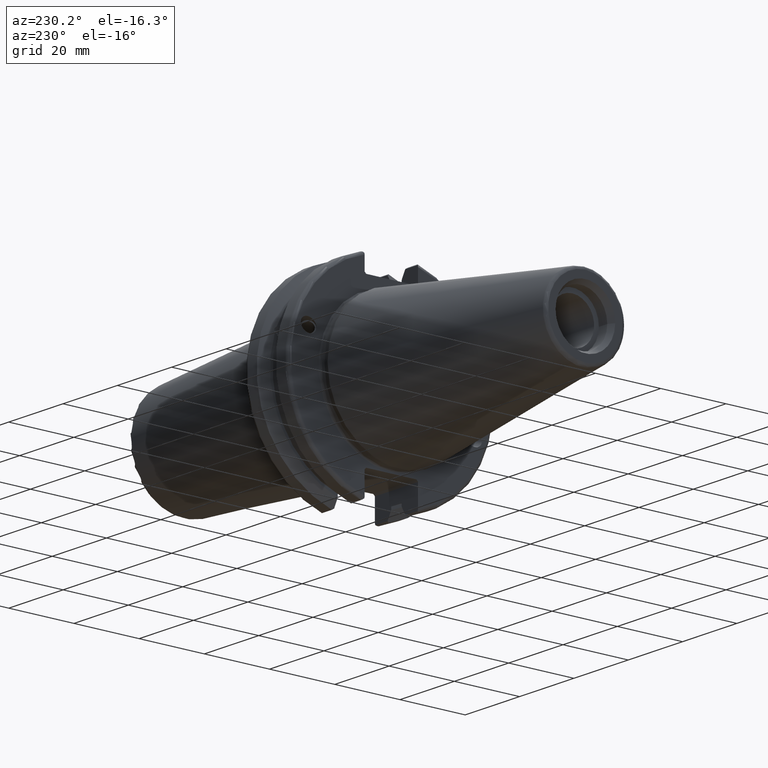
[diagram: clean part render]
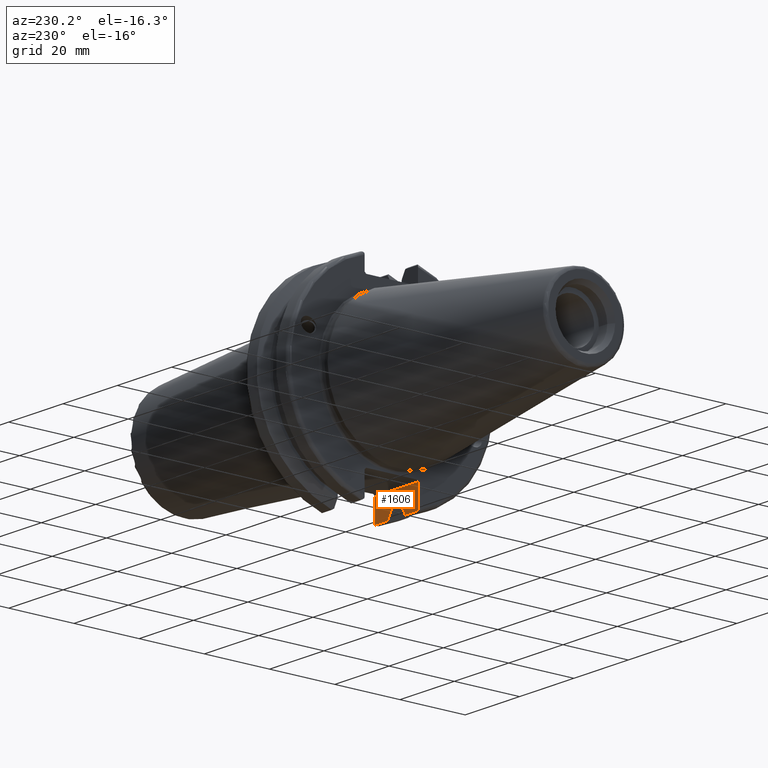
[diagram: same view with one face highlighted and labeled with its STEP entity id]
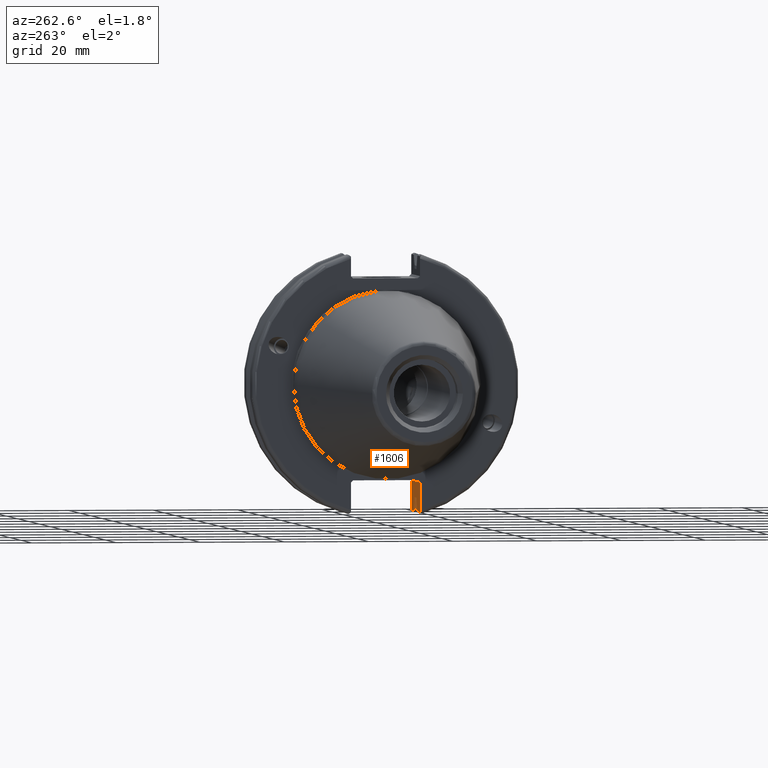
[diagram: same view with one face highlighted and labeled with its STEP entity id]
A machine part, auxiliary view. The second image highlights one B-rep face of the part: STEP entity #1606.
A second angle (auxiliary view) of the same face is appended — the face is thin or edge-on in the first view.
In plain terms, the highlighted planar face has unit normal (0, -1, 0).
Its self-contained STEP definition (entity closure, byte-faithful):
#15=(
BOUNDED_CURVE()
B_SPLINE_CURVE(2,(#2631,#2632,#2633),.UNSPECIFIED.,.F.,.F.)
B_SPLINE_CURVE_WITH_KNOTS((3,3),(0.,0.276549142795512),.UNSPECIFIED.)
CURVE()
GEOMETRIC_REPRESENTATION_ITEM()
RATIONAL_B_SPLINE_CURVE((1.,1.00095203904184,1.00031614445102))
REPRESENTATION_ITEM('')
);
#26=(
BOUNDED_CURVE()
B_SPLINE_CURVE(2,(#2990,#2991,#2992),.UNSPECIFIED.,.F.,.F.)
B_SPLINE_CURVE_WITH_KNOTS((3,3),(0.0550586467392022,0.33160778953585),
 .UNSPECIFIED.)
CURVE()
GEOMETRIC_REPRESENTATION_ITEM()
RATIONAL_B_SPLINE_CURVE((1.00031614445148,1.00095203904325,1.))
REPRESENTATION_ITEM('')
);
#54=B_SPLINE_CURVE_WITH_KNOTS('',3,(#2934,#2935,#2936,#2937,#2938,#2939),
 .UNSPECIFIED.,.F.,.F.,(4,2,4),(0.097738363091569,0.112311108149119,0.150804350305566),
 .UNSPECIFIED.);
#59=B_SPLINE_CURVE_WITH_KNOTS('',3,(#2995,#2996,#2997,#2998,#2999,#3000),
 .UNSPECIFIED.,.F.,.F.,(4,2,4),(0.452741154494498,0.491581665024872,0.505824174364157),
 .UNSPECIFIED.);
#98=LINE('',#2652,#193);
#99=LINE('',#2656,#194);
#100=LINE('',#2660,#195);
#126=LINE('',#2850,#221);
#139=LINE('',#2930,#234);
#147=LINE('',#2988,#242);
#148=LINE('',#2994,#243);
#149=LINE('',#3001,#244);
#193=VECTOR('',#2021,10.);
#194=VECTOR('',#2026,10.);
#195=VECTOR('',#2031,10.);
#221=VECTOR('',#2147,10.);
#234=VECTOR('',#2178,10.);
#242=VECTOR('',#2194,10.);
#243=VECTOR('',#2195,10.);
#244=VECTOR('',#2196,10.);
#354=PLANE('',#1799);
#429=FACE_OUTER_BOUND('',#535,.T.);
#535=EDGE_LOOP('',(#1361,#1362,#1363,#1364,#1365,#1366,#1367,#1368,#1369,
#1370,#1371,#1372));
#706=VERTEX_POINT('',#2628);
#707=VERTEX_POINT('',#2630);
#712=VERTEX_POINT('',#2650);
#713=VERTEX_POINT('',#2654);
#714=VERTEX_POINT('',#2658);
#752=VERTEX_POINT('',#2828);
#762=VERTEX_POINT('',#2848);
#779=VERTEX_POINT('',#2927);
#780=VERTEX_POINT('',#2929);
#781=VERTEX_POINT('',#2933);
#790=VERTEX_POINT('',#2989);
#791=VERTEX_POINT('',#2993);
#887=EDGE_CURVE('',#706,#707,#15,.T.);
#894=EDGE_CURVE('',#712,#706,#98,.T.);
#896=EDGE_CURVE('',#713,#712,#99,.T.);
#898=EDGE_CURVE('',#714,#713,#100,.T.);
#961=EDGE_CURVE('',#762,#752,#126,.T.);
#985=EDGE_CURVE('',#779,#780,#139,.T.);
#987=EDGE_CURVE('',#781,#779,#54,.T.);
#1000=EDGE_CURVE('',#707,#781,#147,.T.);
#1001=EDGE_CURVE('',#790,#714,#26,.T.);
#1002=EDGE_CURVE('',#791,#790,#148,.T.);
#1003=EDGE_CURVE('',#752,#791,#59,.T.);
#1004=EDGE_CURVE('',#780,#762,#149,.T.);
#1361=ORIENTED_EDGE('',*,*,#987,.F.);
#1362=ORIENTED_EDGE('',*,*,#1000,.F.);
#1363=ORIENTED_EDGE('',*,*,#887,.F.);
#1364=ORIENTED_EDGE('',*,*,#894,.F.);
#1365=ORIENTED_EDGE('',*,*,#896,.F.);
#1366=ORIENTED_EDGE('',*,*,#898,.F.);
#1367=ORIENTED_EDGE('',*,*,#1001,.F.);
#1368=ORIENTED_EDGE('',*,*,#1002,.F.);
#1369=ORIENTED_EDGE('',*,*,#1003,.F.);
#1370=ORIENTED_EDGE('',*,*,#961,.F.);
#1371=ORIENTED_EDGE('',*,*,#1004,.F.);
#1372=ORIENTED_EDGE('',*,*,#985,.F.);
#1606=ADVANCED_FACE('',(#429),#354,.F.);
#1799=AXIS2_PLACEMENT_3D('',#2987,#2192,#2193);
#2021=DIRECTION('',(0.,0.,-1.));
#2026=DIRECTION('',(1.,0.,0.));
#2031=DIRECTION('',(0.,0.,1.));
#2147=DIRECTION('',(0.,0.,-1.));
#2178=DIRECTION('',(0.,0.,1.));
#2192=DIRECTION('center_axis',(0.,-1.,0.));
#2193=DIRECTION('ref_axis',(-1.,0.,0.));
#2194=DIRECTION('',(1.,0.,0.));
#2195=DIRECTION('',(1.,0.,0.));
#2196=DIRECTION('',(-1.,0.,0.));
#2628=CARTESIAN_POINT('',(13.0491,-8.19,-27.7771386827498));
#2630=CARTESIAN_POINT('',(14.3815146964874,-8.19,-30.1755016258903));
#2631=CARTESIAN_POINT('Ctrl Pts',(13.0491,-8.19,-27.7771386827498));
#2632=CARTESIAN_POINT('Ctrl Pts',(13.68773643849,-8.19,-28.9303689539956));
#2633=CARTESIAN_POINT('Ctrl Pts',(14.3815146964874,-8.19,-30.1755016258903));
#2650=CARTESIAN_POINT('',(13.0491,-8.19,-26.932255754021));
#2652=CARTESIAN_POINT('',(13.0491,-8.19,-11.3));
#2654=CARTESIAN_POINT('',(9.2191,-8.19,-26.932255754021));
#2656=CARTESIAN_POINT('',(11.1341,-8.19,-26.932255754021));
#2658=CARTESIAN_POINT('',(9.2191,-8.19,-27.7771386827498));
#2660=CARTESIAN_POINT('',(9.2191,-8.19,-11.3));
#2828=CARTESIAN_POINT('',(3.175,-8.19,-29.6392712461019));
#2848=CARTESIAN_POINT('',(3.175,-8.19,-23.1));
#2850=CARTESIAN_POINT('',(3.175,-8.19,-11.3));
#2927=CARTESIAN_POINT('',(19.05,-8.19,-29.6392712461019));
#2929=CARTESIAN_POINT('',(19.05,-8.19,-23.1));
#2930=CARTESIAN_POINT('',(19.05,-8.19,-11.3));
#2933=CARTESIAN_POINT('',(18.9058722749097,-8.19,-30.1755016258903));
#2934=CARTESIAN_POINT('Ctrl Pts',(18.9058722749097,-8.19,-30.1755016258903));
#2935=CARTESIAN_POINT('Ctrl Pts',(18.9324477233044,-8.19,-30.1299319366157));
#2936=CARTESIAN_POINT('Ctrl Pts',(18.9550700364447,-8.19,-30.0829389905409));
#2937=CARTESIAN_POINT('Ctrl Pts',(19.0210043632013,-8.19,-29.9188002007263));
#2938=CARTESIAN_POINT('Ctrl Pts',(19.05,-8.19,-29.76758205329));
#2939=CARTESIAN_POINT('Ctrl Pts',(19.05,-8.19,-29.6392712461019));
#2987=CARTESIAN_POINT('Origin',(20.05,-8.19,-22.6));
#2988=CARTESIAN_POINT('',(16.8551333845378,-8.19,-30.1755016258903));
#2989=CARTESIAN_POINT('',(7.88668530351256,-8.19,-30.1755016258903));
#2990=CARTESIAN_POINT('Ctrl Pts',(7.88668530351256,-8.19,-30.1755016258903));
#2991=CARTESIAN_POINT('Ctrl Pts',(8.5804635615235,-8.19,-28.9303689539712));
#2992=CARTESIAN_POINT('Ctrl Pts',(9.2191,-8.19,-27.7771386827498));
#2993=CARTESIAN_POINT('',(3.31912772509028,-8.19,-30.1755016258903));
#2994=CARTESIAN_POINT('',(5.39146661546218,-8.19,-30.1755016258903));
#2995=CARTESIAN_POINT('Ctrl Pts',(3.175,-8.19,-29.6392712461018));
#2996=CARTESIAN_POINT('Ctrl Pts',(3.175,-8.19,-29.7687396145364));
#2997=CARTESIAN_POINT('Ctrl Pts',(3.20451443291695,-8.19,-29.9212724384851));
#2998=CARTESIAN_POINT('Ctrl Pts',(3.27103565282437,-8.19,-30.0852355256475));
#2999=CARTESIAN_POINT('Ctrl Pts',(3.29318362718666,-8.19,-30.131014531546));
#3000=CARTESIAN_POINT('Ctrl Pts',(3.31912772509028,-8.19,-30.1755016258903));
#3001=CARTESIAN_POINT('',(17.87875,-8.19,-23.1));